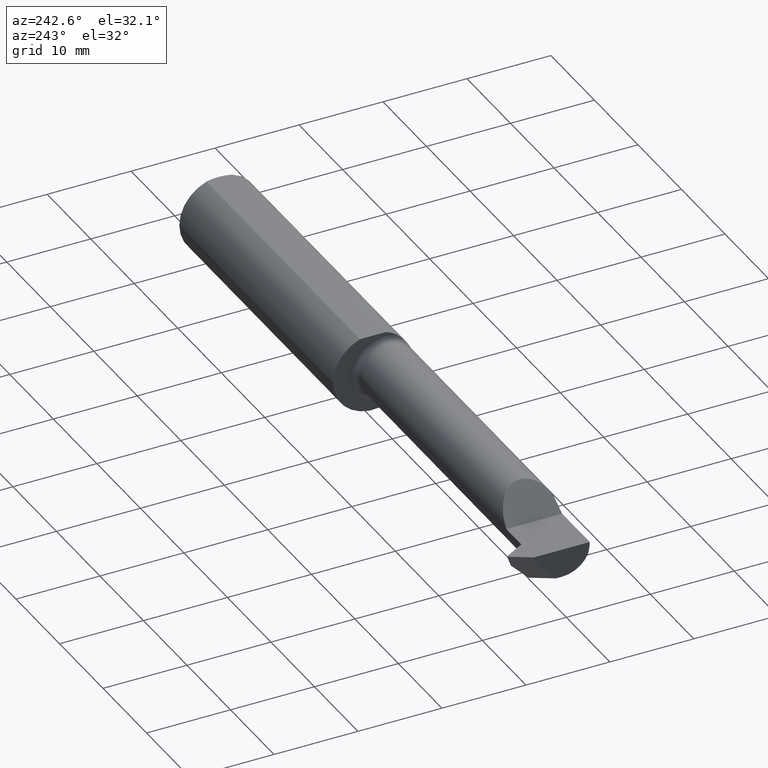
[diagram: clean part render]
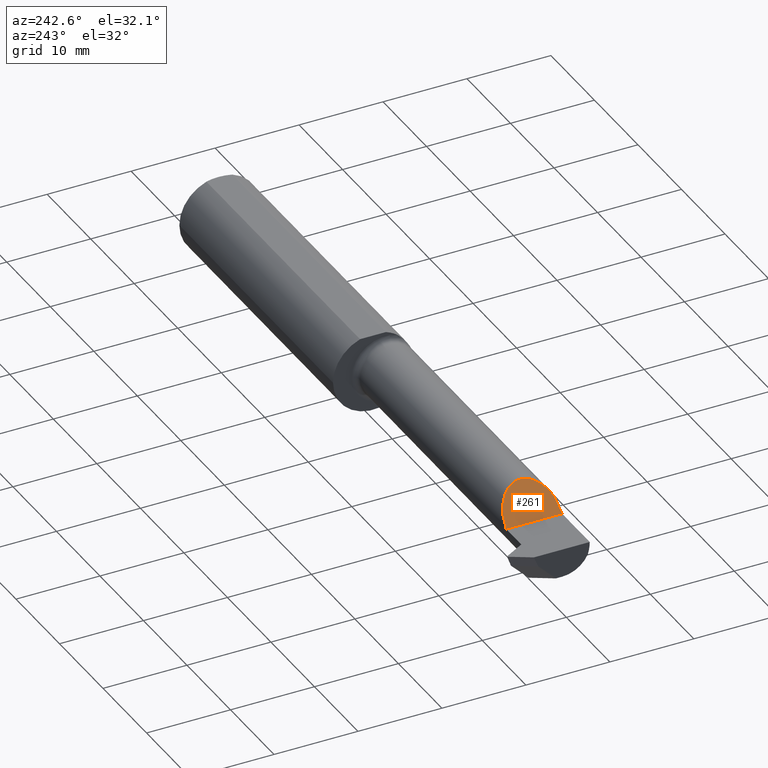
[diagram: same view with one face highlighted and labeled with its STEP entity id]
A machine part, auxiliary view. The second image highlights one B-rep face of the part: STEP entity #261.
In plain terms, the highlighted planar face has unit normal (0.7071, 0, -0.7071).
Its self-contained STEP definition (entity closure, byte-faithful):
#31 = CARTESIAN_POINT ( 'NONE',  ( -2.692691453216398134, -0.1783697086546693344, 0.05730854678360255278 ) ) ;
#59 = CARTESIAN_POINT ( 'NONE',  ( -2.692691453216398134, -0.1783697086546693344, 0.05730854678360255278 ) ) ;
#81 = CARTESIAN_POINT ( 'NONE',  ( -2.750000000000000888, 0.07464999999999998026, 0.000000000000000000 ) ) ;
#97 = DIRECTION ( 'NONE',  ( -0.7071067811865513475, 0.000000000000000000, -0.7071067811865436870 ) ) ;
#107 = FACE_OUTER_BOUND ( 'NONE', #451, .T. ) ;
#160 = PLANE ( 'NONE',  #683 ) ;
#185 = CARTESIAN_POINT ( 'NONE',  ( -2.750000000000000888, -0.2500000000000000000, 0.000000000000000000 ) ) ;
#186 = EDGE_CURVE ( 'NONE', #430, #256, #552, .T. ) ;
#206 = ORIENTED_EDGE ( 'NONE', *, *, #308, .F. ) ;
#254 = DIRECTION ( 'NONE',  ( -0.000000000000000000, 1.000000000000000000, -0.000000000000000000 ) ) ;
#256 = VERTEX_POINT ( 'NONE', #59 ) ;
#261 = ADVANCED_FACE ( 'NONE', ( #107 ), #160, .F. ) ;
#276 = EDGE_CURVE ( 'NONE', #648, #256, #857, .T. ) ;
#308 = EDGE_CURVE ( 'NONE', #648, #430, #665, .T. ) ;
#342 = CARTESIAN_POINT ( 'NONE',  ( -2.530319072763995258, -0.1008380660117481203, 0.2196809272360035481 ) ) ;
#348 = CARTESIAN_POINT ( 'NONE',  ( -2.570066830337791153, 0.07464999999999992475, 0.1799331696622079035 ) ) ;
#430 = VERTEX_POINT ( 'NONE', #801 ) ;
#451 = EDGE_LOOP ( 'NONE', ( #864, #206, #825 ) ) ;
#498 = CARTESIAN_POINT ( 'NONE',  ( -2.692691453216398134, -0.1783697086546693344, 0.05730854678360255278 ) ) ;
#509 = CARTESIAN_POINT ( 'NONE',  ( -2.750000000000000888, -0.1873500000000000443, 0.000000000000000000 ) ) ;
#552 =( BOUNDED_CURVE ( )  B_SPLINE_CURVE ( 3, ( #81, #348, #342, #498 ),
 .UNSPECIFIED., .F., .T. ) 
 B_SPLINE_CURVE_WITH_KNOTS ( ( 4, 4 ),
 ( 1.570796326794896558, 4.266908708460878330 ),
 .UNSPECIFIED. ) 
 CURVE ( )  GEOMETRIC_REPRESENTATION_ITEM ( )  RATIONAL_B_SPLINE_CURVE ( ( 1.000000000000000000, 0.4806019281062884341, 0.4806019281062884341, 1.000000000000000000 ) ) 
 REPRESENTATION_ITEM ( '' )  );
#576 = CARTESIAN_POINT ( 'NONE',  ( -2.750000000000000888, -0.2500000000000000000, 0.000000000000000000 ) ) ;
#579 = CARTESIAN_POINT ( 'NONE',  ( -2.750000000000000888, -0.1873500000000000443, 0.000000000000000000 ) ) ;
#580 = CARTESIAN_POINT ( 'NONE',  ( -2.711249739839923123, -0.1843323154515827400, 0.03875026016007745294 ) ) ;
#594 = DIRECTION ( 'NONE',  ( 0.7071067811865436870, 0.000000000000000000, -0.7071067811865513475 ) ) ;
#645 = VECTOR ( 'NONE', #254, 39.37007874015748143 ) ;
#648 = VERTEX_POINT ( 'NONE', #579 ) ;
#665 = LINE ( 'NONE', #576, #645 ) ;
#683 = AXIS2_PLACEMENT_3D ( 'NONE', #185, #594, #97 ) ;
#775 = CARTESIAN_POINT ( 'NONE',  ( -2.730507368514860200, -0.1873499999999999888, 0.01949263148514075034 ) ) ;
#801 = CARTESIAN_POINT ( 'NONE',  ( -2.750000000000000888, 0.07464999999999998026, 0.000000000000000000 ) ) ;
#825 = ORIENTED_EDGE ( 'NONE', *, *, #276, .T. ) ;
#857 =( BOUNDED_CURVE ( )  B_SPLINE_CURVE ( 3, ( #509, #775, #580, #31 ),
 .UNSPECIFIED., .F., .F. ) 
 B_SPLINE_CURVE_WITH_KNOTS ( ( 4, 4 ),
 ( 4.712388980384689674, 5.023262387692867037 ),
 .UNSPECIFIED. ) 
 CURVE ( )  GEOMETRIC_REPRESENTATION_ITEM ( )  RATIONAL_B_SPLINE_CURVE ( ( 1.000000000000000000, 0.9919626788073501178, 0.9919626788073501178, 1.000000000000000000 ) ) 
 REPRESENTATION_ITEM ( '' )  );
#864 = ORIENTED_EDGE ( 'NONE', *, *, #186, .F. ) ;